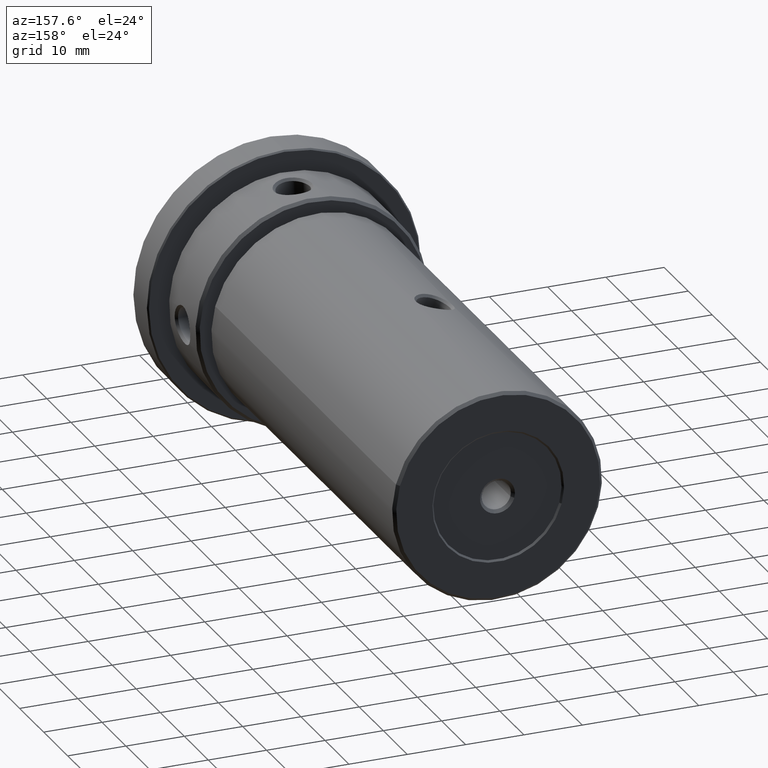
[diagram: clean part render]
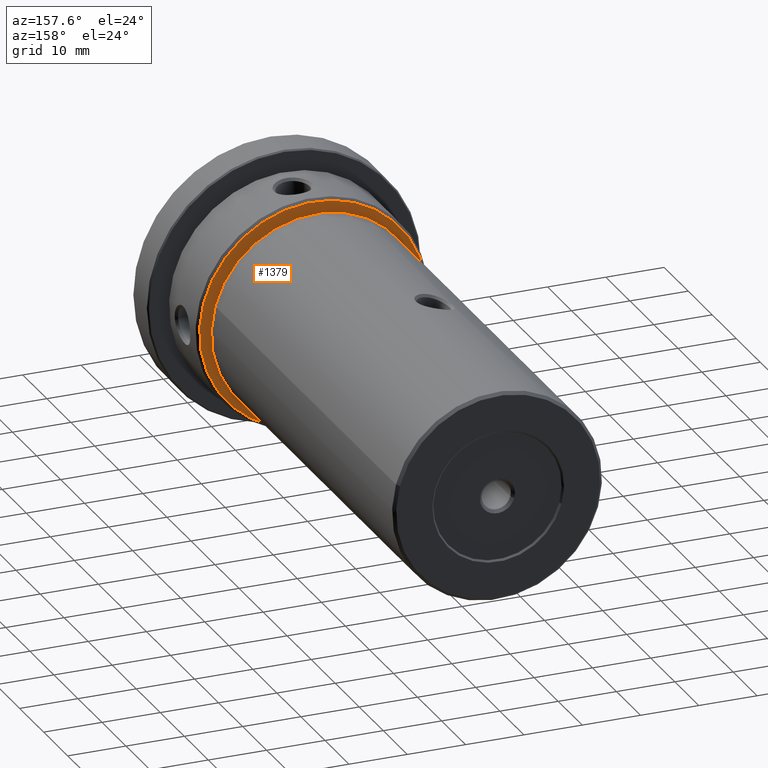
[diagram: same view with one face highlighted and labeled with its STEP entity id]
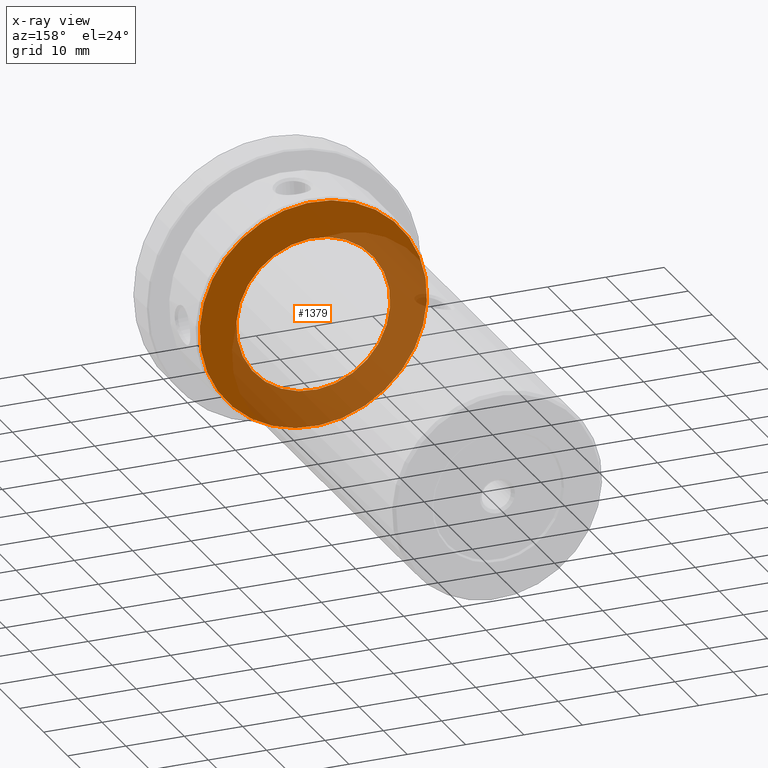
[diagram: x-ray of the same camera — body ghosted, the highlighted face saturated]
A machine part, auxiliary view. The second image highlights one B-rep face of the part: STEP entity #1379.
The next image is the same camera in x-ray: the body ghosted, the highlighted face saturated — about 53% of this face is hidden behind the body in this view.
In plain terms, the highlighted planar face has unit normal (0, 1, 0).
Its self-contained STEP definition (entity closure, byte-faithful):
#396 = DIRECTION ( 'NONE',  ( -0.000000000000000000, -1.000000000000000000, -0.000000000000000000 ) ) ;
#1102 = DIRECTION ( 'NONE',  ( 0.000000000000000000, -0.000000000000000000, 1.000000000000000000 ) ) ;
#1379 = ADVANCED_FACE ( 'NONE', ( #2140, #7926 ), #9704, .T. ) ;
#1578 = VERTEX_POINT ( 'NONE', #5997 ) ;
#1679 = CARTESIAN_POINT ( 'NONE',  ( 0.000000000000000000, 6.000000000000000000, -19.49999999999999645 ) ) ;
#2052 = CARTESIAN_POINT ( 'NONE',  ( 0.000000000000000000, 6.000000000000000000, 0.000000000000000000 ) ) ;
#2140 = FACE_OUTER_BOUND ( 'NONE', #8099, .T. ) ;
#2168 = DIRECTION ( 'NONE',  ( 0.000000000000000000, 0.000000000000000000, 1.000000000000000000 ) ) ;
#2413 = ORIENTED_EDGE ( 'NONE', *, *, #10079, .T. ) ;
#2473 = VERTEX_POINT ( 'NONE', #10481 ) ;
#2569 = DIRECTION ( 'NONE',  ( 0.000000000000000000, 0.000000000000000000, 1.000000000000000000 ) ) ;
#2694 = AXIS2_PLACEMENT_3D ( 'NONE', #3356, #11947, #7115 ) ;
#3356 = CARTESIAN_POINT ( 'NONE',  ( 0.000000000000000000, 6.000000000000000000, 0.000000000000000000 ) ) ;
#3377 = CIRCLE ( 'NONE', #10457, 13.20000000000000284 ) ;
#3879 = CARTESIAN_POINT ( 'NONE',  ( 1.616533774874506598E-15, 6.000000000000000000, -13.20000000000000284 ) ) ;
#4088 = AXIS2_PLACEMENT_3D ( 'NONE', #5087, #7804, #1102 ) ;
#4251 = CIRCLE ( 'NONE', #2694, 19.49999999999999645 ) ;
#4396 = ORIENTED_EDGE ( 'NONE', *, *, #6783, .T. ) ;
#5087 = CARTESIAN_POINT ( 'NONE',  ( 0.000000000000000000, 6.000000000000000000, 0.000000000000000000 ) ) ;
#5997 = CARTESIAN_POINT ( 'NONE',  ( 0.000000000000000000, 6.000000000000000000, 13.20000000000000284 ) ) ;
#6124 = AXIS2_PLACEMENT_3D ( 'NONE', #2052, #396, #2168 ) ;
#6401 = AXIS2_PLACEMENT_3D ( 'NONE', #7293, #8225, #2569 ) ;
#6622 = VERTEX_POINT ( 'NONE', #1679 ) ;
#6783 = EDGE_CURVE ( 'NONE', #1578, #7516, #3377, .T. ) ;
#6818 = CIRCLE ( 'NONE', #6401, 19.49999999999999645 ) ;
#6976 = ORIENTED_EDGE ( 'NONE', *, *, #10039, .T. ) ;
#6993 = DIRECTION ( 'NONE',  ( -0.000000000000000000, -1.000000000000000000, -0.000000000000000000 ) ) ;
#7115 = DIRECTION ( 'NONE',  ( 0.000000000000000000, 0.000000000000000000, 1.000000000000000000 ) ) ;
#7293 = CARTESIAN_POINT ( 'NONE',  ( 0.000000000000000000, 6.000000000000000000, 0.000000000000000000 ) ) ;
#7512 = CIRCLE ( 'NONE', #6124, 13.20000000000000284 ) ;
#7516 = VERTEX_POINT ( 'NONE', #3879 ) ;
#7804 = DIRECTION ( 'NONE',  ( 0.000000000000000000, 1.000000000000000000, 0.000000000000000000 ) ) ;
#7926 = FACE_BOUND ( 'NONE', #8220, .T. ) ;
#8099 = EDGE_LOOP ( 'NONE', ( #6976, #2413 ) ) ;
#8220 = EDGE_LOOP ( 'NONE', ( #4396, #11008 ) ) ;
#8225 = DIRECTION ( 'NONE',  ( 0.000000000000000000, 1.000000000000000000, 0.000000000000000000 ) ) ;
#8788 = CARTESIAN_POINT ( 'NONE',  ( 0.000000000000000000, 6.000000000000000000, 0.000000000000000000 ) ) ;
#9042 = EDGE_CURVE ( 'NONE', #7516, #1578, #7512, .T. ) ;
#9704 = PLANE ( 'NONE',  #4088 ) ;
#10039 = EDGE_CURVE ( 'NONE', #6622, #2473, #4251, .T. ) ;
#10079 = EDGE_CURVE ( 'NONE', #2473, #6622, #6818, .T. ) ;
#10457 = AXIS2_PLACEMENT_3D ( 'NONE', #8788, #6993, #10862 ) ;
#10481 = CARTESIAN_POINT ( 'NONE',  ( 2.418677428316022726E-15, 6.000000000000000000, 19.49999999999999645 ) ) ;
#10862 = DIRECTION ( 'NONE',  ( 0.000000000000000000, 0.000000000000000000, 1.000000000000000000 ) ) ;
#11008 = ORIENTED_EDGE ( 'NONE', *, *, #9042, .T. ) ;
#11947 = DIRECTION ( 'NONE',  ( 0.000000000000000000, 1.000000000000000000, 0.000000000000000000 ) ) ;